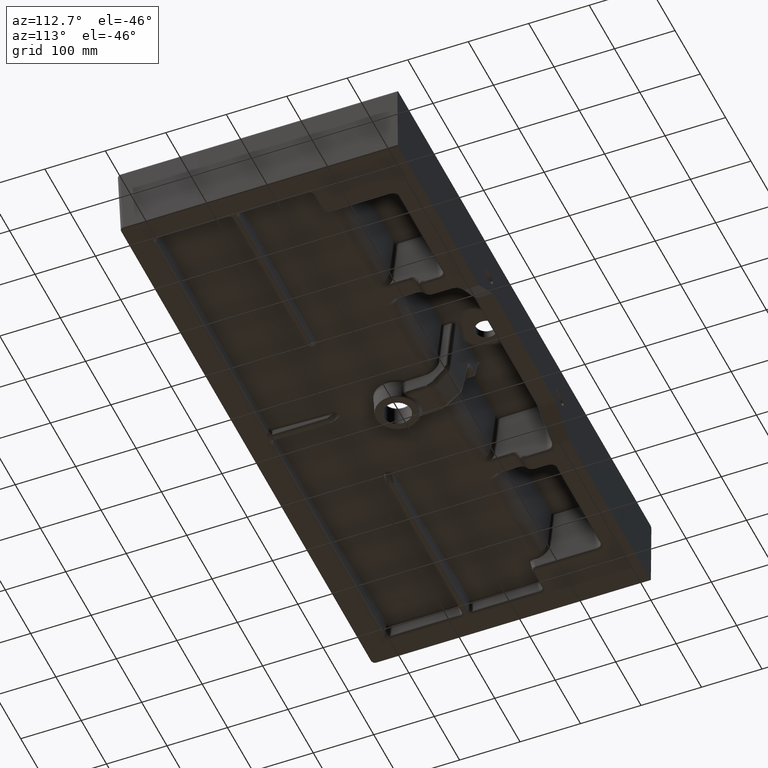
[diagram: clean part render]
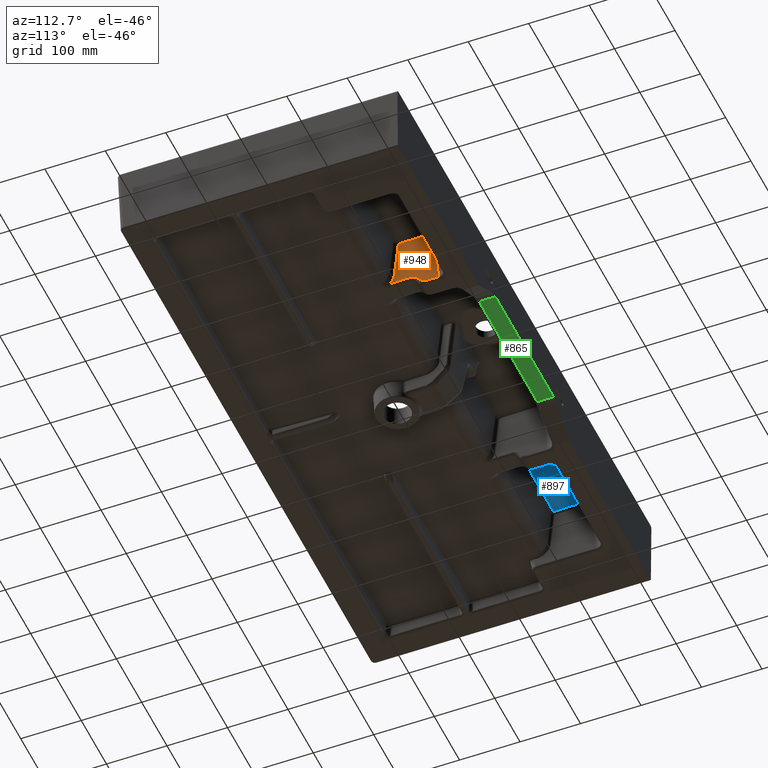
[diagram: same view with three faces highlighted in distinct colors, each labeled with its STEP entity id]
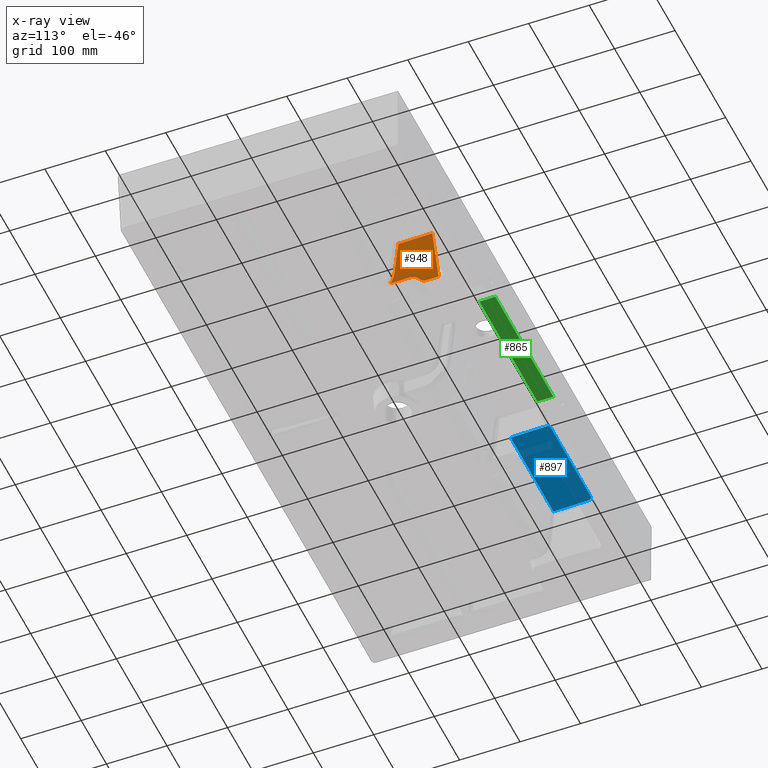
[diagram: x-ray of the same camera — body ghosted, the three highlighted faces saturated]
A machine part, auxiliary view with three faces highlighted in distinct colors.
The next image is the same camera in x-ray (body ghosted, the three faces saturated) — at least one of them is partly hidden behind the body in this view.
Their STEP definitions:

[orange] entity #948 — the highlighted planar face has unit normal (-0.9976, -0.0012, 0.0698).
#436=PLANE('',#5767);
#597=LINE('',#11790,#734);
#598=LINE('',#11793,#735);
#599=LINE('',#11830,#736);
#734=VECTOR('',#6451,1.);
#735=VECTOR('',#6452,1.);
#736=VECTOR('',#6453,1.);
#948=ADVANCED_FACE('',(#1306),#436,.F.);
#1306=FACE_OUTER_BOUND('',#1693,.T.);
#1693=EDGE_LOOP('',(#2830,#2831,#2832,#2833,#2834,#2835,#2836,#2837,#2838));
#2830=ORIENTED_EDGE('',*,*,#4862,.T.);
#2831=ORIENTED_EDGE('',*,*,#4863,.T.);
#2832=ORIENTED_EDGE('',*,*,#4864,.T.);
#2833=ORIENTED_EDGE('',*,*,#4865,.T.);
#2834=ORIENTED_EDGE('',*,*,#4866,.T.);
#2835=ORIENTED_EDGE('',*,*,#4867,.T.);
#2836=ORIENTED_EDGE('',*,*,#4868,.T.);
#2837=ORIENTED_EDGE('',*,*,#4869,.T.);
#2838=ORIENTED_EDGE('',*,*,#4870,.T.);
#4303=VERTEX_POINT('',#11791);
#4304=VERTEX_POINT('',#11792);
#4305=VERTEX_POINT('',#11794);
#4306=VERTEX_POINT('',#11802);
#4307=VERTEX_POINT('',#11809);
#4308=VERTEX_POINT('',#11814);
#4309=VERTEX_POINT('',#11819);
#4310=VERTEX_POINT('',#11824);
#4311=VERTEX_POINT('',#11829);
#4862=EDGE_CURVE('',#4303,#4304,#597,.T.);
#4863=EDGE_CURVE('',#4304,#4305,#598,.T.);
#4864=EDGE_CURVE('',#4305,#4306,#5509,.T.);
#4865=EDGE_CURVE('',#4306,#4307,#5510,.T.);
#4866=EDGE_CURVE('',#4307,#4308,#5511,.T.);
#4867=EDGE_CURVE('',#4308,#4309,#5512,.T.);
#4868=EDGE_CURVE('',#4309,#4310,#5513,.T.);
#4869=EDGE_CURVE('',#4310,#4311,#5514,.T.);
#4870=EDGE_CURVE('',#4311,#4303,#599,.T.);
#5509=B_SPLINE_CURVE_WITH_KNOTS('',3,(#11795,#11796,#11797,#11798,#11799,
#11800,#11801),.UNSPECIFIED.,.F.,.F.,(4,3,4),(0.,0.13603656065587,1.),
 .UNSPECIFIED.);
#5510=B_SPLINE_CURVE_WITH_KNOTS('',3,(#11803,#11804,#11805,#11806,#11807,
#11808),.UNSPECIFIED.,.F.,.F.,(4,2,4),(0.,0.5,1.),.UNSPECIFIED.);
#5511=B_SPLINE_CURVE_WITH_KNOTS('',3,(#11810,#11811,#11812,#11813),
 .UNSPECIFIED.,.F.,.F.,(4,4),(0.,1.),.UNSPECIFIED.);
#5512=B_SPLINE_CURVE_WITH_KNOTS('',3,(#11815,#11816,#11817,#11818),
 .UNSPECIFIED.,.F.,.F.,(4,4),(0.,1.),.UNSPECIFIED.);
#5513=B_SPLINE_CURVE_WITH_KNOTS('',3,(#11820,#11821,#11822,#11823),
 .UNSPECIFIED.,.F.,.F.,(4,4),(0.,1.),.UNSPECIFIED.);
#5514=B_SPLINE_CURVE_WITH_KNOTS('',3,(#11825,#11826,#11827,#11828),
 .UNSPECIFIED.,.F.,.F.,(4,4),(0.,1.),.UNSPECIFIED.);
#5767=AXIS2_PLACEMENT_3D('',#11831,#6454,#6455);
#6451=DIRECTION('',(0.0695979746763237,-0.0869444006122198,0.993779046429907));
#6452=DIRECTION('',(2.15783687433088E-19,-0.999847695156391,-0.0174524064372835));
#6453=DIRECTION('',(-0.00122057704269724,0.999999255095564,0.));
#6454=DIRECTION('',(-0.997563307169938,-0.00121760377836721,0.0697564737441253));
#6455=DIRECTION('',(-0.0697565254532254,0.,-0.99756404664397));
#11790=CARTESIAN_POINT('',(222.29342630466,-59.6339623336367,-5.45268806683913));
#11791=CARTESIAN_POINT('',(215.647506377256,-51.3316298693351,-100.348782368721));
#11792=CARTESIAN_POINT('',(222.081506946672,-59.3692247224622,-8.47865280907197));
#11793=CARTESIAN_POINT('',(222.081506946671,-130.375978866317,-9.71808031299494));
#11794=CARTESIAN_POINT('',(222.081506946672,-115.326211427154,-9.45538564518976));
#11795=CARTESIAN_POINT('',(222.081506946672,-115.326211427154,-9.45538564518976));
#11796=CARTESIAN_POINT('',(221.892602163478,-115.706810853434,-12.1634912793009));
#11797=CARTESIAN_POINT('',(221.703697380285,-116.087410279715,-14.871596913412));
#11798=CARTESIAN_POINT('',(221.514792597091,-116.468009705995,-17.5797025475231));
#11799=CARTESIAN_POINT('',(220.315064925283,-118.885183352227,-34.7787867236701));
#11800=CARTESIAN_POINT('',(219.115337253476,-121.30235699846,-51.9778708998172));
#11801=CARTESIAN_POINT('',(217.915609581668,-123.719530644692,-69.1769550759642));
#11802=CARTESIAN_POINT('',(217.915609581668,-123.719530644692,-69.1769550759642));
#11803=CARTESIAN_POINT('',(217.915609581668,-123.719530644692,-69.1769550759642));
#11804=CARTESIAN_POINT('',(217.710845945622,-124.132081989791,-72.1124104258076));
#11805=CARTESIAN_POINT('',(217.515746416282,-124.957893748615,-74.916876201286));
#11806=CARTESIAN_POINT('',(217.144533672039,-127.421417672402,-80.2684627825956));
#11807=CARTESIAN_POINT('',(216.972830995046,-129.0422075401,-82.7522146249499));
#11808=CARTESIAN_POINT('',(216.821514073277,-130.985846884647,-84.9500721611952));
#11809=CARTESIAN_POINT('',(216.821514073277,-130.985846884647,-84.9500721611952));
#11810=CARTESIAN_POINT('',(216.821514073277,-130.985846884647,-84.9500721611952));
#11811=CARTESIAN_POINT('',(216.817761309204,-120.790357096164,-84.8257762115296));
#11812=CARTESIAN_POINT('',(216.815492203382,-110.59510947096,-84.6802672031643));
#11813=CARTESIAN_POINT('',(216.814485970424,-100.40017339618,-84.5167037230295));
#11814=CARTESIAN_POINT('',(216.814485970424,-100.40017339618,-84.5167037230295));
#11815=CARTESIAN_POINT('',(216.814485970424,-100.40017339618,-84.5167037230295));
#11816=CARTESIAN_POINT('',(216.813896189408,-94.4246388898924,-84.4208346354407));
#11817=CARTESIAN_POINT('',(216.619753832223,-88.5979421927881,-87.0954922545345));
#11818=CARTESIAN_POINT('',(216.295170154396,-84.7669407012627,-91.6703812660712));
#11819=CARTESIAN_POINT('',(216.295170154396,-84.7669407012627,-91.6703812660712));
#11820=CARTESIAN_POINT('',(216.295170154396,-84.7669407012627,-91.6703812660712));
#11821=CARTESIAN_POINT('',(216.174408472623,-83.3416127670659,-93.3724732956404));
#11822=CARTESIAN_POINT('',(216.053646767399,-81.9162852439027,-95.0745656677446));
#11823=CARTESIAN_POINT('',(215.932885038806,-80.4909581303522,-96.776658381199));
#11824=CARTESIAN_POINT('',(215.932885038806,-80.4909581303522,-96.776658381199));
#11825=CARTESIAN_POINT('',(215.932885038806,-80.4909581303522,-96.776658381199));
#11826=CARTESIAN_POINT('',(215.773570008126,-78.610593916704,-99.0221458880759));
#11827=CARTESIAN_POINT('',(215.677332814535,-75.7679530326442,-100.348782368721));
#11828=CARTESIAN_POINT('',(215.673752680391,-72.8348063715582,-100.348782368721));
#11829=CARTESIAN_POINT('',(215.673752680391,-72.8348063715582,-100.348782368721));
#11830=CARTESIAN_POINT('',(215.647009204365,-50.9243040686449,-100.348782368721));
#11831=CARTESIAN_POINT('',(222.34173965955,-130.440918076953,-5.99771542734587));

[blue] entity #897 — the highlighted planar face has unit normal (0, 0.0175, -0.9998).
#428=PLANE('',#5719);
#578=LINE('',#10094,#714);
#579=LINE('',#10098,#715);
#714=VECTOR('',#6333,1.);
#715=VECTOR('',#6336,1.);
#788=ELLIPSE('',#5718,6.02927164303373,6.);
#897=ADVANCED_FACE('',(#1256),#428,.T.);
#1256=FACE_OUTER_BOUND('',#1641,.T.);
#1641=EDGE_LOOP('',(#2606,#2607,#2608,#2609,#2610,#2611,#2612));
#2606=ORIENTED_EDGE('',*,*,#4734,.T.);
#2607=ORIENTED_EDGE('',*,*,#4735,.T.);
#2608=ORIENTED_EDGE('',*,*,#4736,.T.);
#2609=ORIENTED_EDGE('',*,*,#4737,.T.);
#2610=ORIENTED_EDGE('',*,*,#4738,.T.);
#2611=ORIENTED_EDGE('',*,*,#4739,.T.);
#2612=ORIENTED_EDGE('',*,*,#4740,.T.);
#4222=VERTEX_POINT('',#10074);
#4223=VERTEX_POINT('',#10075);
#4224=VERTEX_POINT('',#10086);
#4225=VERTEX_POINT('',#10093);
#4226=VERTEX_POINT('',#10095);
#4227=VERTEX_POINT('',#10097);
#4228=VERTEX_POINT('',#10099);
#4734=EDGE_CURVE('',#4222,#4223,#5431,.T.);
#4735=EDGE_CURVE('',#4223,#4224,#5432,.T.);
#4736=EDGE_CURVE('',#4224,#4225,#5433,.T.);
#4737=EDGE_CURVE('',#4225,#4226,#578,.T.);
#4738=EDGE_CURVE('',#4226,#4227,#788,.T.);
#4739=EDGE_CURVE('',#4227,#4228,#579,.T.);
#4740=EDGE_CURVE('',#4228,#4222,#5434,.T.);
#5431=B_SPLINE_CURVE_WITH_KNOTS('',3,(#10064,#10065,#10066,#10067,#10068,
#10069,#10070,#10071,#10072,#10073),.UNSPECIFIED.,.F.,.F.,(4,3,3,4),(0.,
0.0477227077880667,0.238613538940333,1.),.UNSPECIFIED.);
#5432=B_SPLINE_CURVE_WITH_KNOTS('',3,(#10076,#10077,#10078,#10079,#10080,
#10081,#10082,#10083,#10084,#10085),.UNSPECIFIED.,.F.,.F.,(4,3,3,4),(0.,
0.137967132368673,0.68983566184358,1.),.UNSPECIFIED.);
#5433=B_SPLINE_CURVE_WITH_KNOTS('',3,(#10087,#10088,#10089,#10090,#10091,
#10092),.UNSPECIFIED.,.F.,.F.,(4,2,4),(0.,0.5,1.),.UNSPECIFIED.);
#5434=B_SPLINE_CURVE_WITH_KNOTS('',3,(#10100,#10101,#10102,#10103,#10104,
#10105,#10106,#10107,#10108,#10109,#10110,#10111,#10112,#10113,#10114,#10115),
 .UNSPECIFIED.,.F.,.F.,(4,3,3,3,3,4),(0.,0.218197897323881,0.436554539809109,
0.652572139765947,0.865951071473927,1.),.UNSPECIFIED.);
#5718=AXIS2_PLACEMENT_3D('',#10096,#6334,#6335);
#5719=AXIS2_PLACEMENT_3D('',#10116,#6337,#6338);
#6333=DIRECTION('',(1.,0.,0.));
#6334=DIRECTION('',(1.73472347597681E-18,0.0174524064372835,-0.999847695156391));
#6335=DIRECTION('',(0.707160894474054,0.70694497621218,0.0123397704604608));
#6336=DIRECTION('',(-2.17370098657971E-19,-0.999847695156391,-0.0174524064372835));
#6337=DIRECTION('',(0.,0.0174524064372835,-0.999847695156391));
#6338=DIRECTION('',(0.,0.999847695156391,0.0174524064372835));
#10064=CARTESIAN_POINT('',(-228.054764189204,-117.393675802575,-5.76997496631242));
#10065=CARTESIAN_POINT('',(-230.72143085587,-117.393675802575,-5.76997496631242));
#10066=CARTESIAN_POINT('',(-233.388097522537,-117.393675802575,-5.76997496631242));
#10067=CARTESIAN_POINT('',(-236.054764189204,-117.393675802575,-5.76997496631242));
#10068=CARTESIAN_POINT('',(-246.72143085587,-117.393675802575,-5.76997496631242));
#10069=CARTESIAN_POINT('',(-257.388097522537,-117.393675802575,-5.76997496631242));
#10070=CARTESIAN_POINT('',(-268.054764189204,-117.393675802575,-5.76997496631242));
#10071=CARTESIAN_POINT('',(-310.599791289841,-117.393675802575,-5.76997496631242));
#10072=CARTESIAN_POINT('',(-353.144818390479,-117.393675802575,-5.76997496631242));
#10073=CARTESIAN_POINT('',(-395.689845491117,-117.393675802575,-5.76997496631242));
#10074=CARTESIAN_POINT('',(-228.054764189204,-117.393675802575,-5.76997496631242));
#10075=CARTESIAN_POINT('',(-395.689845491117,-117.393675802575,-5.76997496631242));
#10076=CARTESIAN_POINT('',(-395.689845491117,-117.393675802575,-5.76997496631242));
#10077=CARTESIAN_POINT('',(-395.685773795178,-114.727418390195,-5.72343527006398));
#10078=CARTESIAN_POINT('',(-395.681702099245,-112.061160977815,-5.67689557381555));
#10079=CARTESIAN_POINT('',(-395.677630403322,-109.394903565435,-5.63035587756712));
#10080=CARTESIAN_POINT('',(-395.661343619629,-98.7298739159109,-5.44419709257331));
#10081=CARTESIAN_POINT('',(-395.645056836068,-88.0648442663868,-5.2580383075795));
#10082=CARTESIAN_POINT('',(-395.628770052691,-77.3998146168624,-5.07187952258569));
#10083=CARTESIAN_POINT('',(-395.619616460635,-71.4057930592085,-4.9672534871157));
#10084=CARTESIAN_POINT('',(-395.610462868638,-65.4117715015546,-4.86262745164572));
#10085=CARTESIAN_POINT('',(-395.601309276708,-59.4177499439005,-4.75800141617573));
#10086=CARTESIAN_POINT('',(-395.601309276708,-59.4177499439005,-4.75800141617573));
#10087=CARTESIAN_POINT('',(-395.601309276708,-59.4177499439005,-4.75800141617573));
#10088=CARTESIAN_POINT('',(-395.59889868916,-57.8392314954001,-4.73044827416677));
#10089=CARTESIAN_POINT('',(-394.951091666224,-56.2958170076894,-4.70350787407263));
#10090=CARTESIAN_POINT('',(-392.743015580593,-54.0943388275086,-4.66508092949952));
#10091=CARTESIAN_POINT('',(-391.19376164405,-53.449695692078,-4.65382864171504));
#10092=CARTESIAN_POINT('',(-389.615027151344,-53.449695692078,-4.65382864171504));
#10093=CARTESIAN_POINT('',(-389.615027151344,-53.449695692078,-4.65382864171505));
#10094=CARTESIAN_POINT('',(300.,-53.449695692078,-4.65382864171505));
#10095=CARTESIAN_POINT('',(-232.057144477251,-53.449695692078,-4.65382864171505));
#10096=CARTESIAN_POINT('',(-232.086416044182,-59.463431020026,-4.75879878232549));
#10097=CARTESIAN_POINT('',(-226.071760175351,-59.4341639330979,-4.7582879234229));
#10098=CARTESIAN_POINT('',(-226.071760175351,-130.440918076953,-5.99771542734587));
#10099=CARTESIAN_POINT('',(-226.071760175351,-115.391150637786,-5.73502075954064));
#10100=CARTESIAN_POINT('',(-226.071760175351,-115.391150637786,-5.73502075954064));
#10101=CARTESIAN_POINT('',(-226.071760175351,-115.617668764505,-5.73897464814994));
#10102=CARTESIAN_POINT('',(-226.110463370498,-115.847331131939,-5.74298341968506));
#10103=CARTESIAN_POINT('',(-226.185179348653,-116.061176133489,-5.7467160980717));
#10104=CARTESIAN_POINT('',(-226.259927345641,-116.275112776315,-5.75045037606275));
#10105=CARTESIAN_POINT('',(-226.372862892045,-116.479143682703,-5.75401174878112));
#10106=CARTESIAN_POINT('',(-226.514893454064,-116.655744679788,-5.75709433065161));
#10107=CARTESIAN_POINT('',(-226.655413756354,-116.830467817837,-5.76014413437072));
#10108=CARTESIAN_POINT('',(-226.828371888372,-116.983209698605,-5.7628102538168));
#10109=CARTESIAN_POINT('',(-227.019306500092,-117.100781778772,-5.76486248210986));
#10110=CARTESIAN_POINT('',(-227.207961101627,-117.216949893792,-5.76689020410012));
#10111=CARTESIAN_POINT('',(-227.419390321165,-117.302009945374,-5.76837493282327));
#10112=CARTESIAN_POINT('',(-227.635933320549,-117.348894494724,-5.76919330567632));
#10113=CARTESIAN_POINT('',(-227.773159015777,-117.378605752527,-5.76971191761037));
#10114=CARTESIAN_POINT('',(-227.914357924281,-117.393675802575,-5.76997496631242));
#10115=CARTESIAN_POINT('',(-228.054764189204,-117.393675802575,-5.76997496631242));
#10116=CARTESIAN_POINT('',(300.,-130.440918076953,-5.99771542734587));

[green] entity #865 — the highlighted planar face has unit normal (-0, 0, -1).
#418=PLANE('',#5689);
#527=LINE('',#8576,#662);
#550=LINE('',#8856,#685);
#551=LINE('',#8858,#686);
#552=LINE('',#8860,#687);
#662=VECTOR('',#6159,1.);
#685=VECTOR('',#6246,1.);
#686=VECTOR('',#6247,1.);
#687=VECTOR('',#6248,1.);
#865=ADVANCED_FACE('',(#1228),#418,.T.);
#1228=FACE_OUTER_BOUND('',#1605,.T.);
#1605=EDGE_LOOP('',(#2459,#2460,#2461,#2462));
#2459=ORIENTED_EDGE('',*,*,#4625,.F.);
#2460=ORIENTED_EDGE('',*,*,#4626,.T.);
#2461=ORIENTED_EDGE('',*,*,#4627,.T.);
#2462=ORIENTED_EDGE('',*,*,#4565,.T.);
#4071=VERTEX_POINT('',#8575);
#4072=VERTEX_POINT('',#8577);
#4127=VERTEX_POINT('',#8857);
#4128=VERTEX_POINT('',#8859);
#4565=EDGE_CURVE('',#4072,#4071,#527,.T.);
#4625=EDGE_CURVE('',#4127,#4071,#550,.T.);
#4626=EDGE_CURVE('',#4127,#4128,#551,.T.);
#4627=EDGE_CURVE('',#4128,#4072,#552,.T.);
#5689=AXIS2_PLACEMENT_3D('',#8861,#6249,#6250);
#6159=DIRECTION('',(1.,0.,-1.36625088210792E-16));
#6246=DIRECTION('',(0.,1.,0.));
#6247=DIRECTION('',(-1.,-9.55375685008158E-18,1.36625088210792E-16));
#6248=DIRECTION('',(0.,1.,0.));
#6249=DIRECTION('',(-1.36625088210792E-16,0.,-1.));
#6250=DIRECTION('',(1.,0.,-1.38777878078145E-16));
#8575=CARTESIAN_POINT('',(114.848352396099,0.,-69.0003300378925));
#8576=CARTESIAN_POINT('',(-300.,0.,-69.0003300378924));
#8577=CARTESIAN_POINT('',(-114.848352396099,0.,-69.0003300378925));
#8856=CARTESIAN_POINT('',(114.848352396099,0.,-69.0003300378925));
#8857=CARTESIAN_POINT('',(114.848352396099,-26.563698391721,-69.0003300378925));
#8858=CARTESIAN_POINT('',(-114.848352396099,-26.563698391721,-69.0003300378925));
#8859=CARTESIAN_POINT('',(-114.848352396099,-26.563698391721,-69.0003300378925));
#8860=CARTESIAN_POINT('',(-114.848352396099,0.,-69.0003300378925));
#8861=CARTESIAN_POINT('',(101.035035131604,45.,-69.0003300378925));